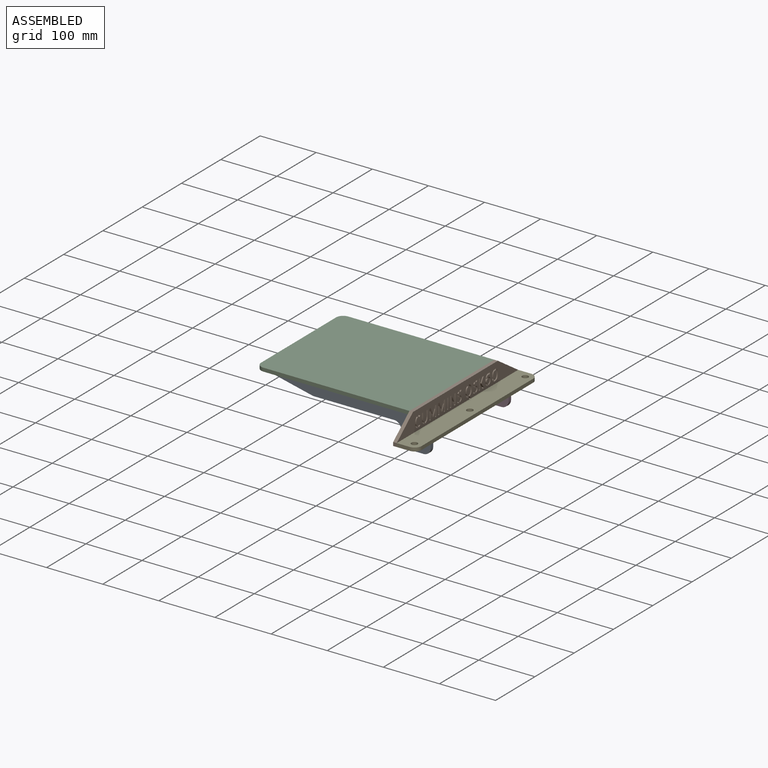
[diagram: assembled view]
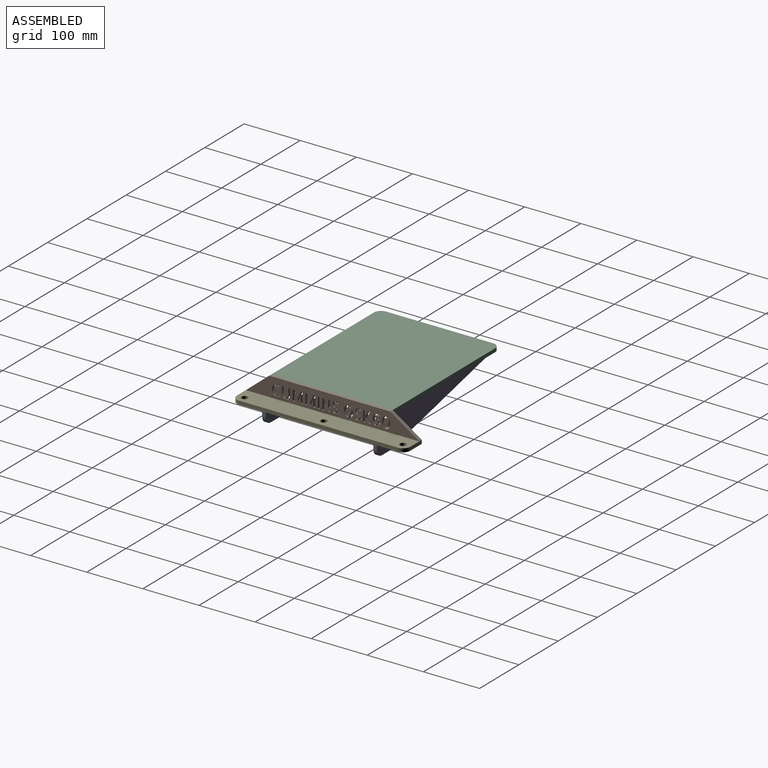
[diagram: assembled view, second angle]
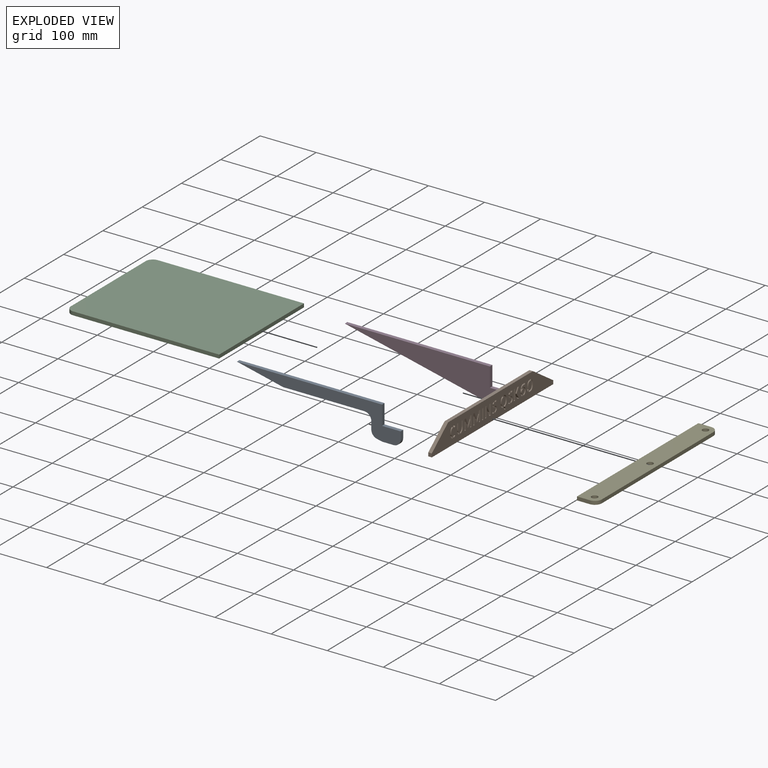
[diagram: exploded view]
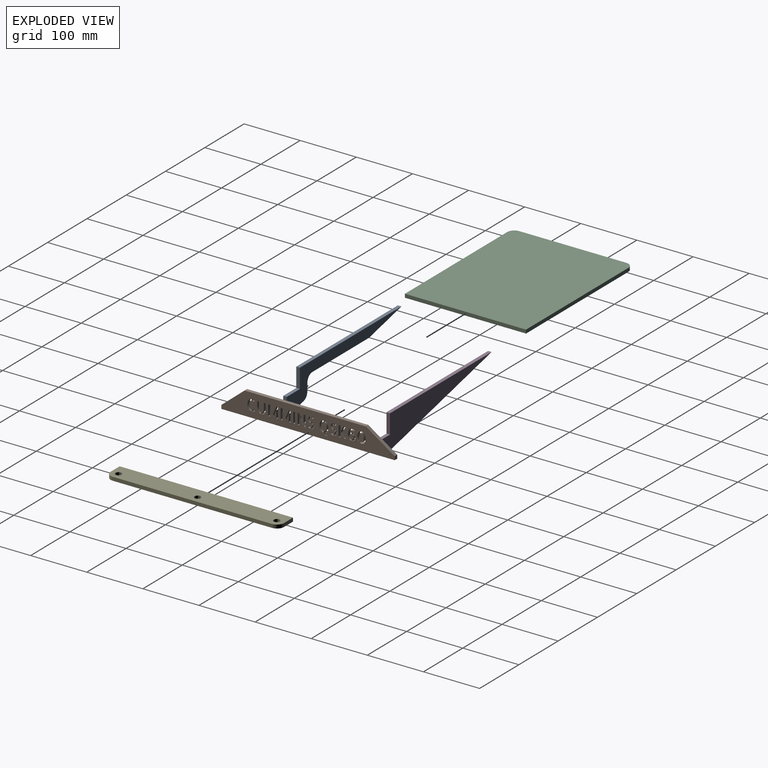
[diagram: exploded view, second angle]
ASSEMBLY  parts=5 mates=4
PART A: 16 faces, bbox 59.7x291.9x6.4 mm
  f0: plane 142.83x6.35mm, normal (1,0,0), area 907mm2, adj f1,f13,f14,f15
  f1: cylinder r=12.7mm len=12.7mm, axis (0,0,-1), area 126.7mm2, adj f0,f2,f14,f15
  f2: plane 13.44x6.35mm, normal (0,-1,0), area 85.3mm2, adj f1,f3,f14,f15
  f3: cylinder r=12.7mm len=12.37mm, axis (0,0,-1), area 108.4mm2, adj f2,f4,f14,f15
  f4: plane 7.8x6.35mm, normal (0.97,-0.22,0), area 50.8mm2, adj f3,f5,f14,f15
  f5: cylinder r=12.7mm len=6.35mm, axis (0,0,-1), area 18.3mm2, adj f4,f6,f14,f15
  f6: plane 19.2x6.35mm, normal (1,0,0), area 121.9mm2, adj f5,f7,f14,f15
  f7: cylinder r=12.7mm len=12.7mm, axis (0,0,-1), area 126.7mm2, adj f6,f8,f14,f15
  f8: plane 12.7x6.35mm, normal (0,1,0), area 80.6mm2, adj f7,f9,f14,f15
  f9: plane 33.35x6.35mm, normal (-1,0,0), area 211.8mm2, adj f8,f10,f14,f15
  f10: plane 34.29x6.35mm, normal (0,1,0), area 217.7mm2, adj f9,f11,f14,f15
  f11: plane 258.55x6.35mm, normal (-1,0,0), area 1641.8mm2, adj f10,f12,f14,f15
  f12: plane 81.1x18.72mm, normal (0.97,-0.22,0), area 528.6mm2, adj f11,f13,f14,f15
  f13: cylinder r=12.7mm len=6.35mm, axis (0,0,-1), area 18.3mm2, adj f0,f12,f14,f15
  f14: plane 291.9x59.69mm, normal (0,0,1), area 5698.7mm2, adj f0,f1,f2,f3,f4,f5,f6,f7
  f15: plane 291.9x59.69mm, normal (0,0,-1), area 5698.7mm2, adj f0,f1,f2,f3,f4,f5,f6,f7
PART B: 337 faces, bbox 40.6x309x6.4 mm
  f0: extruded ~6.35x0.05mm, area 0.4mm2, adj f1,f334,f335,f336
  f1: plane 6.35x3mm, normal (0.43,0.9,0), area 21.1mm2, adj f0,f2,f335,f336
  f2: extruded ~6.35x3.18mm, area 23.8mm2, adj f1,f3,f335,f336
  f3: extruded ~6.35x4.78mm, area 30.8mm2, adj f2,f4,f335,f336
  f4: extruded ~6.35x4.24mm, area 27.2mm2, adj f3,f5,f335,f336
  f5: extruded ~6.35x3.05mm, area 21.6mm2, adj f4,f6,f335,f336
  f6: extruded ~6.35x2.3mm, area 18.8mm2, adj f5,f7,f335,f336
  f7: extruded ~6.35x3.05mm, area 19.9mm2, adj f6,f8,f335,f336
  f8: extruded ~6.35x3.25mm, area 21.4mm2, adj f7,f9,f335,f336
  f9: plane 6.35x2.46mm, normal (0.43,0.9,0), area 17.3mm2, adj f8,f10,f335,f336
  f10: extruded ~6.35x2.01mm, area 13.7mm2, adj f9,f11,f335,f336
  f11: extruded ~6.35x1.75mm, area 11.4mm2, adj f10,f12,f335,f336
  f12: extruded ~6.35x1.33mm, area 11.6mm2, adj f11,f13,f335,f336
  f13: extruded ~6.35x2.23mm, area 15.2mm2, adj f12,f14,f335,f336
  f14: extruded ~6.35x3.37mm, area 21.5mm2, adj f13,f15,f335,f336
  f15: extruded ~6.35x2.84mm, area 18.1mm2, adj f14,f334,f335,f336
  f16: plane 6.35x2.43mm, normal (-0.42,-0.91,0), area 17mm2, adj f17,f306,f335,f336
  f17: extruded ~6.35x1.91mm, area 12.8mm2, adj f16,f18,f335,f336
  f18: extruded ~6.35x1.73mm, area 11.3mm2, adj f17,f19,f335,f336
  f19: extruded ~6.35x1.32mm, area 11.6mm2, adj f18,f20,f335,f336
  f20: extruded ~6.35x2.24mm, area 15.2mm2, adj f19,f21,f335,f336
  f21: extruded ~6.35x3.36mm, area 21.5mm2, adj f20,f22,f335,f336
  f22: extruded ~6.35x2.79mm, area 17.8mm2, adj f21,f23,f335,f336
  f23: extruded ~6.35x2.07mm, area 13.6mm2, adj f22,f24,f335,f336
  f24: plane 6.35x3.02mm, normal (-0.42,-0.91,0), area 21.2mm2, adj f23,f25,f335,f336
  f25: extruded ~6.35x3.16mm, area 23.4mm2, adj f24,f26,f335,f336
  f26: extruded ~6.35x4.72mm, area 30.3mm2, adj f25,f27,f335,f336
  f27: extruded ~6.35x4.23mm, area 27.1mm2, adj f26,f28,f335,f336
  f28: extruded ~6.35x3.04mm, area 21.5mm2, adj f27,f29,f335,f336
  f29: extruded ~6.35x2.3mm, area 18.9mm2, adj f28,f30,f335,f336
  f30: extruded ~6.35x3.03mm, area 19.8mm2, adj f29,f306,f335,f336
  f31: extruded ~6.35x2.15mm, area 16.4mm2, adj f32,f307,f335,f336
  f32: plane 6.35x2.35mm, normal (0,1,0), area 14.9mm2, adj f31,f33,f335,f336
  f33: extruded ~6.35x2.35mm, area 15.5mm2, adj f32,f34,f335,f336
  f34: extruded ~6.35x1.81mm, area 14.7mm2, adj f33,f35,f335,f336
  f35: extruded ~6.35x1.94mm, area 14.4mm2, adj f34,f36,f335,f336
  f36: extruded ~6.35x2.13mm, area 13.8mm2, adj f35,f37,f335,f336
  f37: extruded ~6.35x3.12mm, area 20.2mm2, adj f36,f38,f335,f336
  f38: extruded ~6.35x2.08mm, area 16mm2, adj f37,f39,f335,f336
  f39: extruded ~6.35x1.86mm, area 14.2mm2, adj f38,f40,f335,f336
  f40: extruded ~6.35x1.91mm, area 12.6mm2, adj f39,f41,f335,f336
  f41: plane 6.35x2.53mm, normal (0,1,0), area 16.1mm2, adj f40,f42,f335,f336
  f42: extruded ~6.35x2.13mm, area 16.5mm2, adj f41,f43,f335,f336
  f43: extruded ~6.35x2.75mm, area 18.6mm2, adj f42,f307,f335,f336
  f44: extruded ~6.35x1.6mm, area 10.9mm2, adj f45,f308,f335,f336
  f45: extruded ~6.35x2.04mm, area 13mm2, adj f44,f46,f335,f336
  f46: extruded ~6.35x1.83mm, area 12.2mm2, adj f45,f47,f335,f336
  f47: extruded ~6.35x1.28mm, area 11.4mm2, adj f46,f48,f335,f336
  f48: extruded ~6.35x1.78mm, area 12.4mm2, adj f47,f49,f335,f336
  f49: extruded ~6.35x2.09mm, area 13.4mm2, adj f48,f50,f335,f336
  f50: extruded ~6.35x0.1mm, area 0.7mm2, adj f49,f51,f335,f336
  f51: extruded ~6.35x0.1mm, area 0.7mm2, adj f50,f52,f335,f336
  f52: extruded ~6.35x1.09mm, area 9.6mm2, adj f51,f53,f335,f336
  f53: extruded ~6.35x1.89mm, area 12.6mm2, adj f52,f54,f335,f336
  f54: plane 6.35x2.27mm, normal (0,-1,0), area 14.4mm2, adj f53,f55,f335,f336
  f55: extruded ~6.35x1.32mm, area 8.8mm2, adj f54,f56,f335,f336
  f56: extruded ~6.35x1.03mm, area 8.6mm2, adj f55,f57,f335,f336
  f57: extruded ~6.35x1.24mm, area 9.1mm2, adj f56,f58,f335,f336
  f58: extruded ~6.35x1.54mm, area 10mm2, adj f57,f59,f335,f336
  f59: extruded ~6.35x1.58mm, area 10.2mm2, adj f58,f60,f335,f336
  f60: extruded ~6.35x1.27mm, area 9.2mm2, adj f59,f61,f335,f336
  f61: extruded ~6.35x1.05mm, area 8.8mm2, adj f60,f62,f335,f336
  f62: extruded ~6.35x1.31mm, area 8.8mm2, adj f61,f63,f335,f336
  f63: plane 6.35x2.53mm, normal (0,-1,0), area 16.1mm2, adj f62,f64,f335,f336
  f64: extruded ~6.35x2.75mm, area 18.1mm2, adj f63,f65,f335,f336
  f65: extruded ~6.35x1.96mm, area 16.3mm2, adj f64,f66,f335,f336
  f66: extruded ~6.35x2.39mm, area 17mm2, adj f65,f67,f335,f336
  f67: extruded ~6.35x3mm, area 19.2mm2, adj f66,f68,f335,f336
  f68: extruded ~6.35x5.67mm, area 36.3mm2, adj f67,f69,f335,f336
  f69: extruded ~6.35x3.58mm, area 25.1mm2, adj f68,f70,f335,f336
  f70: extruded ~6.35x2.22mm, area 18.6mm2, adj f69,f71,f335,f336
  f71: extruded ~6.35x2.44mm, area 16mm2, adj f70,f72,f335,f336
  f72: extruded ~6.35x2.73mm, area 17.4mm2, adj f71,f73,f335,f336
  f73: extruded ~6.35x2.19mm, area 14.8mm2, adj f72,f308,f335,f336
  f74: plane 6.35x3.54mm, normal (1,0,0), area 22.5mm2, adj f75,f309,f335,f336
  f75: plane 9.79x6.35mm, normal (-0.53,-0.85,0), area 73.2mm2, adj f74,f76,f335,f336
  f76: plane 9.25x6.61mm, normal (0.58,-0.81,0), area 72.2mm2, adj f75,f77,f335,f336
  f77: plane 6.35x3.59mm, normal (-1,0,0), area 22.8mm2, adj f76,f78,f335,f336
  f78: plane 7.5x6.35mm, normal (-0.56,0.83,0), area 57.5mm2, adj f77,f79,f335,f336
  f79: plane 6.35x3.77mm, normal (0,1,0), area 23.9mm2, adj f78,f309,f335,f336
  f80: plane 19.04x6.35mm, normal (0,-1,0), area 120.9mm2, adj f81,f310,f335,f336
  f81: plane 6.35x3.15mm, normal (-1,0,0), area 20mm2, adj f80,f82,f335,f336
  f82: plane 19.04x6.35mm, normal (0,1,0), area 120.9mm2, adj f81,f310,f335,f336
  f83: extruded ~6.35x1.52mm, area 12mm2, adj f84,f311,f335,f336
  f84: plane 6.35x3.03mm, normal (0,1,0), area 19.2mm2, adj f83,f85,f335,f336
  f85: extruded ~6.35x1.74mm, area 12.3mm2, adj f84,f86,f335,f336
  f86: extruded ~6.35x1.61mm, area 12.3mm2, adj f85,f87,f335,f336
  f87: extruded ~6.35x1.54mm, area 12.4mm2, adj f86,f88,f335,f336
  f88: extruded ~6.35x2.25mm, area 14.7mm2, adj f87,f89,f335,f336
  f89: extruded ~6.35x1.81mm, area 11.8mm2, adj f88,f90,f335,f336
  f90: extruded ~6.35x1.59mm, area 11.9mm2, adj f89,f91,f335,f336
  f91: extruded ~6.35x1.56mm, area 12.6mm2, adj f90,f92,f335,f336
  f92: extruded ~6.35x2.12mm, area 14.1mm2, adj f91,f93,f335,f336
  f93: plane 6.35x2.48mm, normal (0,1,0), area 15.8mm2, adj f92,f94,f335,f336
  f94: extruded ~6.35x2.82mm, area 24.5mm2, adj f93,f311,f335,f336
  f95: extruded ~6.35x1.05mm, area 7.9mm2, adj f96,f312,f335,f336
  f96: plane 6.35x2.22mm, normal (0.24,0.97,0), area 14.5mm2, adj f95,f97,f335,f336
  f97: extruded ~6.35x0.92mm, area 6.4mm2, adj f96,f98,f335,f336
  f98: extruded ~6.35x1.15mm, area 7.7mm2, adj f97,f99,f335,f336
  f99: extruded ~6.35x1.19mm, area 7.7mm2, adj f98,f100,f335,f336
  f100: extruded ~6.35x1.11mm, area 7.1mm2, adj f99,f101,f335,f336
  f101: plane 6.35x0.08mm, normal (1,0,0), area 0.5mm2, adj f100,f102,f335,f336
  f102: plane 6.35x2.46mm, normal (0,-1,0), area 15.6mm2, adj f101,f103,f335,f336
  f103: plane 6.35x0.05mm, normal (-1,0,0), area 0.3mm2, adj f102,f104,f335,f336
  f104: extruded ~6.35x1.28mm, area 8.1mm2, adj f103,f105,f335,f336
  f105: extruded ~6.35x1.33mm, area 8.6mm2, adj f104,f312,f335,f336
  f106: extruded ~6.35x1.5mm, area 12.1mm2, adj f107,f313,f335,f336
  f107: extruded ~6.35x2.04mm, area 13.4mm2, adj f106,f108,f335,f336
  f108: extruded ~6.35x2.04mm, area 13.3mm2, adj f107,f109,f335,f336
  f109: extruded ~6.35x1.59mm, area 12.1mm2, adj f108,f110,f335,f336
  f110: extruded ~6.35x1.55mm, area 12.1mm2, adj f109,f111,f335,f336
  f111: extruded ~6.35x1.88mm, area 12.4mm2, adj f110,f112,f335,f336
  f112: plane 6.35x2.72mm, normal (0,-1,0), area 17.2mm2, adj f111,f113,f335,f336
  f113: extruded ~6.35x1.37mm, area 10.9mm2, adj f112,f114,f335,f336
  f114: extruded ~6.35x1.43mm, area 9.9mm2, adj f113,f115,f335,f336
  f115: extruded ~6.35x1.63mm, area 11.2mm2, adj f114,f116,f335,f336
  f116: extruded ~6.35x1.37mm, area 11.1mm2, adj f115,f117,f335,f336
  f117: plane 6.35x2.95mm, normal (0,-1,0), area 18.7mm2, adj f116,f118,f335,f336
  f118: extruded ~6.35x1.71mm, area 12.2mm2, adj f117,f313,f335,f336
  f119: extruded ~6.35x0.58mm, area 4.2mm2, adj f120,f314,f335,f336
  f120: extruded ~6.35x0.26mm, area 1.9mm2, adj f119,f121,f335,f336
  f121: extruded ~6.35x0.31mm, area 2.3mm2, adj f120,f122,f335,f336
  f122: extruded ~6.35x0.52mm, area 3.6mm2, adj f121,f123,f335,f336
  f123: extruded ~6.35x0.85mm, area 5.6mm2, adj f122,f124,f335,f336
  f124: extruded ~6.35x1.32mm, area 8.4mm2, adj f123,f125,f335,f336
  f125: plane 6.35x2.61mm, normal (0,1,0), area 16.6mm2, adj f124,f126,f335,f336
  f126: extruded ~6.35x2.31mm, area 14.8mm2, adj f125,f127,f335,f336
  f127: extruded ~6.35x1.9mm, area 12.9mm2, adj f126,f128,f335,f336
  f128: extruded ~6.35x0.74mm, area 5.2mm2, adj f127,f314,f335,f336
  f129: extruded ~6.35x3mm, area 21.6mm2, adj f130,f315,f335,f336
  f130: extruded ~6.35x4.07mm, area 26.2mm2, adj f129,f131,f335,f336
  f131: extruded ~6.35x3.57mm, area 22.9mm2, adj f130,f132,f335,f336
  f132: extruded ~6.35x2.82mm, area 19.7mm2, adj f131,f133,f335,f336
  f133: extruded ~6.35x1.99mm, area 17.4mm2, adj f132,f134,f335,f336
  f134: extruded ~6.35x2.25mm, area 15.8mm2, adj f133,f135,f335,f336
  f135: plane 6.35x4.6mm, normal (0.61,-0.79,0), area 37mm2, adj f134,f136,f335,f336
  f136: plane 6.35x3.41mm, normal (-1,0,0), area 21.7mm2, adj f135,f137,f335,f336
  f137: plane 6.35x2.97mm, normal (-0.5,0.86,0), area 21.8mm2, adj f136,f138,f335,f336
  f138: plane 6.35x3.83mm, normal (0,1,0), area 24.3mm2, adj f137,f139,f335,f336
  f139: extruded ~6.35x1.64mm, area 11.1mm2, adj f138,f140,f335,f336
  f140: extruded ~6.35x1.33mm, area 12mm2, adj f139,f141,f335,f336
  f141: extruded ~6.35x2.17mm, area 15mm2, adj f140,f142,f335,f336
  f142: extruded ~6.35x3.14mm, area 20.1mm2, adj f141,f143,f335,f336
  f143: extruded ~6.35x3.14mm, area 20.1mm2, adj f142,f144,f335,f336
  f144: extruded ~6.35x2.17mm, area 15.1mm2, adj f143,f145,f335,f336
  f145: extruded ~6.35x1.34mm, area 12.1mm2, adj f144,f146,f335,f336
  f146: extruded ~6.35x1.61mm, area 10.9mm2, adj f145,f147,f335,f336
  f147: plane 6.35x2.56mm, normal (0,1,0), area 16.2mm2, adj f146,f148,f335,f336
  f148: extruded ~6.35x2.93mm, area 19.4mm2, adj f147,f315,f335,f336
  f149: extruded ~6.35x2.95mm, area 21mm2, adj f150,f316,f335,f336
  f150: extruded ~6.35x3.95mm, area 25.4mm2, adj f149,f151,f335,f336
  f151: extruded ~6.35x4.07mm, area 26.2mm2, adj f150,f152,f335,f336
  f152: extruded ~6.35x3mm, area 21.6mm2, adj f151,f153,f335,f336
  f153: extruded ~6.35x2.36mm, area 19.4mm2, adj f152,f154,f335,f336
  f154: extruded ~6.35x2.95mm, area 19.5mm2, adj f153,f155,f335,f336
  f155: plane 6.35x2.58mm, normal (0,-1,0), area 16.4mm2, adj f154,f156,f335,f336
  f156: extruded ~6.35x1.64mm, area 11.1mm2, adj f155,f157,f335,f336
  f157: extruded ~6.35x1.33mm, area 11.9mm2, adj f156,f158,f335,f336
  f158: extruded ~6.35x2.17mm, area 15mm2, adj f157,f159,f335,f336
  f159: extruded ~6.35x3.13mm, area 20.1mm2, adj f158,f160,f335,f336
  f160: extruded ~6.35x3.14mm, area 20.1mm2, adj f159,f161,f335,f336
  f161: extruded ~6.35x2.18mm, area 15.1mm2, adj f160,f162,f335,f336
  f162: extruded ~6.35x1.34mm, area 12.1mm2, adj f161,f163,f335,f336
  f163: extruded ~6.35x1.62mm, area 10.9mm2, adj f162,f164,f335,f336
  f164: plane 6.35x2.51mm, normal (0,-1,0), area 15.9mm2, adj f163,f165,f335,f336
  f165: plane 6.35x0.47mm, normal (-1,0,0), area 3mm2, adj f164,f166,f335,f336
  f166: extruded ~6.35x2.78mm, area 18.6mm2, adj f165,f316,f335,f336
  f167: extruded ~6.35x1.52mm, area 12mm2, adj f168,f317,f335,f336
  f168: plane 6.35x3.03mm, normal (0,1,0), area 19.2mm2, adj f167,f169,f335,f336
  f169: extruded ~6.35x1.74mm, area 12.3mm2, adj f168,f170,f335,f336
  f170: extruded ~6.35x1.61mm, area 12.3mm2, adj f169,f171,f335,f336
  f171: extruded ~6.35x1.54mm, area 12.4mm2, adj f170,f172,f335,f336
  f172: extruded ~6.35x2.25mm, area 14.7mm2, adj f171,f173,f335,f336
  f173: extruded ~6.35x1.81mm, area 11.8mm2, adj f172,f174,f335,f336
  f174: extruded ~6.35x1.59mm, area 11.9mm2, adj f173,f175,f335,f336
  f175: extruded ~6.35x1.56mm, area 12.6mm2, adj f174,f176,f335,f336
  f176: extruded ~6.35x2.12mm, area 14.1mm2, adj f175,f177,f335,f336
  f177: plane 6.35x2.48mm, normal (0,1,0), area 15.8mm2, adj f176,f178,f335,f336
  f178: extruded ~6.35x2.82mm, area 24.5mm2, adj f177,f317,f335,f336
  f179: extruded ~6.35x1.05mm, area 7.9mm2, adj f180,f318,f335,f336
  f180: plane 6.35x2.22mm, normal (0.24,0.97,0), area 14.5mm2, adj f179,f181,f335,f336
  f181: extruded ~6.35x0.92mm, area 6.4mm2, adj f180,f182,f335,f336
  f182: extruded ~6.35x1.15mm, area 7.7mm2, adj f181,f183,f335,f336
  f183: extruded ~6.35x1.19mm, area 7.7mm2, adj f182,f184,f335,f336
  f184: extruded ~6.35x1.11mm, area 7.1mm2, adj f183,f185,f335,f336
  f185: plane 6.35x0.08mm, normal (1,0,0), area 0.5mm2, adj f184,f186,f335,f336
  f186: plane 6.35x2.46mm, normal (0,-1,0), area 15.6mm2, adj f185,f187,f335,f336
  f187: plane 6.35x0.05mm, normal (-1,0,0), area 0.3mm2, adj f186,f188,f335,f336
  f188: extruded ~6.35x1.28mm, area 8.1mm2, adj f187,f189,f335,f336
  f189: extruded ~6.35x1.33mm, area 8.6mm2, adj f188,f318,f335,f336
  f190: extruded ~6.35x1.5mm, area 12.1mm2, adj f191,f319,f335,f336
  f191: extruded ~6.35x2.04mm, area 13.4mm2, adj f190,f192,f335,f336
  f192: extruded ~6.35x2.04mm, area 13.3mm2, adj f191,f193,f335,f336
  f193: extruded ~6.35x1.59mm, area 12.1mm2, adj f192,f194,f335,f336
  f194: extruded ~6.35x1.55mm, area 12.1mm2, adj f193,f195,f335,f336
  f195: extruded ~6.35x1.88mm, area 12.4mm2, adj f194,f196,f335,f336
  f196: plane 6.35x2.72mm, normal (0,-1,0), area 17.2mm2, adj f195,f197,f335,f336
  f197: extruded ~6.35x1.37mm, area 10.9mm2, adj f196,f198,f335,f336
  f198: extruded ~6.35x1.43mm, area 9.9mm2, adj f197,f199,f335,f336
  f199: extruded ~6.35x1.63mm, area 11.2mm2, adj f198,f200,f335,f336
  f200: extruded ~6.35x1.37mm, area 11.1mm2, adj f199,f201,f335,f336
  f201: plane 6.35x2.95mm, normal (0,-1,0), area 18.7mm2, adj f200,f202,f335,f336
  f202: extruded ~6.35x1.71mm, area 12.2mm2, adj f201,f319,f335,f336
  f203: extruded ~6.35x0.58mm, area 4.2mm2, adj f204,f320,f335,f336
  f204: extruded ~6.35x0.26mm, area 1.9mm2, adj f203,f205,f335,f336
  f205: extruded ~6.35x0.31mm, area 2.3mm2, adj f204,f206,f335,f336
  f206: extruded ~6.35x0.52mm, area 3.6mm2, adj f205,f207,f335,f336
  f207: extruded ~6.35x0.85mm, area 5.6mm2, adj f206,f208,f335,f336
  f208: extruded ~6.35x1.32mm, area 8.4mm2, adj f207,f209,f335,f336
  f209: plane 6.35x2.61mm, normal (0,1,0), area 16.6mm2, adj f208,f210,f335,f336
  f210: extruded ~6.35x2.31mm, area 14.8mm2, adj f209,f211,f335,f336
  f211: extruded ~6.35x1.9mm, area 12.9mm2, adj f210,f212,f335,f336
  f212: extruded ~6.35x0.74mm, area 5.2mm2, adj f211,f320,f335,f336
  f213: plane 19.04x6.35mm, normal (0,-1,0), area 120.9mm2, adj f214,f321,f335,f336
  f214: plane 6.35x3.15mm, normal (-1,0,0), area 20mm2, adj f213,f215,f335,f336
  f215: plane 19.04x6.35mm, normal (0,1,0), area 120.9mm2, adj f214,f321,f335,f336
  f216: plane 11.29x6.41mm, normal (0.49,-0.87,0), area 82.5mm2, adj f217,f322,f335,f336
  f217: plane 13.13x6.35mm, normal (0,1,0), area 83.3mm2, adj f216,f218,f335,f336
  f218: plane 6.35x3.15mm, normal (1,0,0), area 20mm2, adj f217,f219,f335,f336
  f219: plane 19.04x6.35mm, normal (0,-1,0), area 120.9mm2, adj f218,f220,f335,f336
  f220: plane 6.35x3.15mm, normal (-1,0,0), area 20mm2, adj f219,f221,f335,f336
  f221: plane 11.27x6.41mm, normal (-0.49,0.87,0), area 82.3mm2, adj f220,f322,f335,f336
  f222: plane 6.35x3.15mm, normal (1,0,0), area 20mm2, adj f223,f323,f335,f336
  f223: plane 19.04x6.35mm, normal (0,-1,0), area 120.9mm2, adj f222,f224,f335,f336
  f224: plane 6.35x3.15mm, normal (-1,0,0), area 20mm2, adj f223,f323,f335,f336
  f225: plane 6.35x4.73mm, normal (0,1,0), area 30mm2, adj f226,f324,f335,f336
  f226: plane 11.81x6.35mm, normal (0.4,0.92,0), area 81.7mm2, adj f225,f227,f335,f336
  f227: plane 6.35x3.15mm, normal (1,0,0), area 20mm2, adj f226,f228,f335,f336
  f228: plane 19.04x6.35mm, normal (0,-1,0), area 120.9mm2, adj f227,f229,f335,f336
  f229: plane 6.35x3.15mm, normal (-1,0,0), area 20mm2, adj f228,f230,f335,f336
  f230: plane 13.1x6.35mm, normal (0,1,0), area 83.2mm2, adj f229,f231,f335,f336
  f231: plane 10.6x6.35mm, normal (-0.37,-0.93,0), area 72.5mm2, adj f230,f324,f335,f336
  f232: plane 6.35x3.15mm, normal (-1,0,0), area 20mm2, adj f233,f325,f335,f336
  f233: plane 19.04x6.35mm, normal (0,1,0), area 120.9mm2, adj f232,f234,f335,f336
  f234: plane 6.35x3.15mm, normal (1,0,0), area 20mm2, adj f233,f235,f335,f336
  f235: plane 11.75x6.35mm, normal (0.4,-0.92,0), area 81.4mm2, adj f234,f236,f335,f336
  f236: plane 6.35x4.78mm, normal (0,-1,0), area 30.4mm2, adj f235,f237,f335,f336
  f237: plane 6.35x0.83mm, normal (-1,0,0), area 5.3mm2, adj f236,f238,f335,f336
  f238: plane 10.6x6.35mm, normal (-0.38,0.93,0), area 72.6mm2, adj f237,f325,f335,f336
  f239: plane 6.35x4.73mm, normal (0,1,0), area 30mm2, adj f240,f326,f335,f336
  f240: plane 11.81x6.35mm, normal (0.4,0.92,0), area 81.7mm2, adj f239,f241,f335,f336
  f241: plane 6.35x3.15mm, normal (1,0,0), area 20mm2, adj f240,f242,f335,f336
  f242: plane 19.04x6.35mm, normal (0,-1,0), area 120.9mm2, adj f241,f243,f335,f336
  f243: plane 6.35x3.15mm, normal (-1,0,0), area 20mm2, adj f242,f244,f335,f336
  f244: plane 13.1x6.35mm, normal (0,1,0), area 83.2mm2, adj f243,f245,f335,f336
  f245: plane 10.6x6.35mm, normal (-0.37,-0.93,0), area 72.5mm2, adj f244,f326,f335,f336
  f246: plane 6.35x3.15mm, normal (-1,0,0), area 20mm2, adj f247,f327,f335,f336
  f247: plane 19.04x6.35mm, normal (0,1,0), area 120.9mm2, adj f246,f248,f335,f336
  f248: plane 6.35x3.15mm, normal (1,0,0), area 20mm2, adj f247,f249,f335,f336
  f249: plane 11.75x6.35mm, normal (0.4,-0.92,0), area 81.4mm2, adj f248,f250,f335,f336
  f250: plane 6.35x4.78mm, normal (0,-1,0), area 30.4mm2, adj f249,f251,f335,f336
  f251: plane 6.35x0.83mm, normal (-1,0,0), area 5.3mm2, adj f250,f252,f335,f336
  f252: plane 10.6x6.35mm, normal (-0.38,0.93,0), area 72.6mm2, adj f251,f327,f335,f336
  f253: plane 9.12x6.35mm, normal (0,1,0), area 57.9mm2, adj f254,f328,f335,f336
  f254: plane 6.35x3.13mm, normal (1,0,0), area 19.8mm2, adj f253,f255,f335,f336
  f255: plane 9.43x6.35mm, normal (0,-1,0), area 59.9mm2, adj f254,f256,f335,f336
  f256: extruded ~6.35x4.08mm, area 26.2mm2, adj f255,f257,f335,f336
  f257: extruded ~6.35x3.01mm, area 21.1mm2, adj f256,f258,f335,f336
  f258: extruded ~6.35x2.16mm, area 18.4mm2, adj f257,f259,f335,f336
  f259: extruded ~6.35x2.84mm, area 18.8mm2, adj f258,f260,f335,f336
  f260: plane 6.35x2.56mm, normal (0,1,0), area 16.2mm2, adj f259,f261,f335,f336
  f261: extruded ~6.35x1.54mm, area 10.4mm2, adj f260,f262,f335,f336
  f262: extruded ~6.35x1.3mm, area 11.3mm2, adj f261,f263,f335,f336
  f263: extruded ~6.35x2.26mm, area 15.2mm2, adj f262,f328,f335,f336
  f264: plane 6.35x3.15mm, normal (1,0,0), area 20mm2, adj f265,f329,f335,f336
  f265: plane 9.12x6.35mm, normal (0,-1,0), area 57.9mm2, adj f264,f266,f335,f336
  f266: extruded ~6.35x3.37mm, area 21.5mm2, adj f265,f267,f335,f336
  f267: extruded ~6.35x2.27mm, area 15.3mm2, adj f266,f268,f335,f336
  f268: extruded ~6.35x1.33mm, area 11.4mm2, adj f267,f269,f335,f336
  f269: extruded ~6.35x1.54mm, area 10.4mm2, adj f268,f270,f335,f336
  f270: plane 6.35x2.56mm, normal (0,-1,0), area 16.2mm2, adj f269,f271,f335,f336
  f271: extruded ~6.35x2.85mm, area 18.9mm2, adj f270,f272,f335,f336
  f272: extruded ~6.35x2.16mm, area 18.4mm2, adj f271,f273,f335,f336
  f273: extruded ~6.35x3.01mm, area 21.1mm2, adj f272,f274,f335,f336
  f274: extruded ~6.35x4.08mm, area 26.2mm2, adj f273,f329,f335,f336
  f275: extruded ~6.35x2.99mm, area 21.4mm2, adj f276,f330,f335,f336
  f276: extruded ~6.35x4.07mm, area 26.2mm2, adj f275,f277,f335,f336
  f277: extruded ~6.35x4.06mm, area 26.1mm2, adj f276,f278,f335,f336
  f278: extruded ~6.35x2.97mm, area 21.4mm2, adj f277,f279,f335,f336
  f279: extruded ~6.35x2.31mm, area 19.1mm2, adj f278,f280,f335,f336
  f280: extruded ~6.35x2.91mm, area 19.3mm2, adj f279,f281,f335,f336
  f281: plane 6.35x2.58mm, normal (0,-1,0), area 16.4mm2, adj f280,f282,f335,f336
  f282: extruded ~6.35x1.6mm, area 10.9mm2, adj f281,f283,f335,f336
  f283: extruded ~6.35x1.32mm, area 11.9mm2, adj f282,f284,f335,f336
  f284: extruded ~6.35x2.16mm, area 14.9mm2, adj f283,f285,f335,f336
  f285: extruded ~6.35x3.09mm, area 19.8mm2, adj f284,f286,f335,f336
  f286: extruded ~6.35x3.1mm, area 19.8mm2, adj f285,f287,f335,f336
  f287: extruded ~6.35x2.17mm, area 15mm2, adj f286,f288,f335,f336
  f288: extruded ~6.35x1.34mm, area 12.1mm2, adj f287,f289,f335,f336
  f289: extruded ~6.35x1.59mm, area 10.8mm2, adj f288,f290,f335,f336
  f290: plane 6.35x2.53mm, normal (0,-1,0), area 16.1mm2, adj f289,f291,f335,f336
  f291: extruded ~6.35x2.91mm, area 19.2mm2, adj f290,f330,f335,f336
  f292: extruded ~6.35x2.66mm, area 17.4mm2, adj f293,f331,f335,f336
  f293: plane 6.35x2.56mm, normal (0,1,0), area 16.2mm2, adj f292,f294,f335,f336
  f294: extruded ~6.35x1.46mm, area 9.7mm2, adj f293,f295,f335,f336
  f295: extruded ~6.35x1.25mm, area 10.2mm2, adj f294,f296,f335,f336
  f296: plane 6.35x2.15mm, normal (0.75,-0.66,0), area 18.1mm2, adj f295,f331,f335,f336
  f297: extruded ~6.35x4.86mm, area 34.3mm2, adj f298,f332,f335,f336
  f298: plane 6.35x2.15mm, normal (-0.75,-0.66,0), area 18.2mm2, adj f297,f299,f335,f336
  f299: extruded ~6.35x1.27mm, area 10.3mm2, adj f298,f300,f335,f336
  f300: extruded ~6.35x1.45mm, area 9.6mm2, adj f299,f332,f335,f336
  f301: plane 41.43x34.29mm, normal (-0.77,-0.64,0), area 341.5mm2, adj f302,f333,f335,f336
  f302: plane 6.35x6.35mm, normal (0,-1,0), area 40.3mm2, adj f301,f303,f335,f336
  f303: plane 308.97x6.35mm, normal (1,0,0), area 1961.9mm2, adj f302,f304,f335,f336
  f304: plane 6.35x6.35mm, normal (0,1,0), area 40.3mm2, adj f303,f305,f335,f336
  f305: plane 51.59x34.29mm, normal (-0.83,0.55,0), area 393.3mm2, adj f304,f333,f335,f336
  f306: extruded ~6.35x3.13mm, area 20.5mm2, adj f16,f30,f335,f336
  f307: extruded ~6.35x2.66mm, area 18mm2, adj f31,f43,f335,f336
  f308: plane 6.35x2.14mm, normal (-0.42,-0.91,0), area 15mm2, adj f44,f73,f335,f336
  f309: plane 7.78x6.35mm, normal (0.51,0.86,0), area 57.5mm2, adj f74,f79,f335,f336
  f310: plane 6.35x3.15mm, normal (1,0,0), area 20mm2, adj f80,f82,f335,f336
  f311: extruded ~6.35x1.5mm, area 10.5mm2, adj f83,f94,f335,f336
  f312: extruded ~6.35x1.28mm, area 8.6mm2, adj f95,f105,f335,f336
  f313: extruded ~6.35x1.55mm, area 12.2mm2, adj f106,f118,f335,f336
  f314: extruded ~6.35x0.75mm, area 5.3mm2, adj f119,f128,f335,f336
  f315: extruded ~6.35x2.35mm, area 19.3mm2, adj f129,f148,f335,f336
  f316: extruded ~6.35x2.21mm, area 18.7mm2, adj f149,f166,f335,f336
  f317: extruded ~6.35x1.5mm, area 10.5mm2, adj f167,f178,f335,f336
  f318: extruded ~6.35x1.28mm, area 8.6mm2, adj f179,f189,f335,f336
  f319: extruded ~6.35x1.55mm, area 12.2mm2, adj f190,f202,f335,f336
  f320: extruded ~6.35x0.75mm, area 5.3mm2, adj f203,f212,f335,f336
  f321: plane 6.35x3.15mm, normal (1,0,0), area 20mm2, adj f213,f215,f335,f336
  f322: plane 6.35x5.95mm, normal (0,1,0), area 37.7mm2, adj f216,f221,f335,f336
  f323: plane 19.04x6.35mm, normal (0,1,0), area 120.9mm2, adj f222,f224,f335,f336
  f324: plane 6.35x0.86mm, normal (-1,0,0), area 5.4mm2, adj f225,f231,f335,f336
  f325: plane 13.1x6.35mm, normal (0,-1,0), area 83.2mm2, adj f232,f238,f335,f336
  f326: plane 6.35x0.86mm, normal (-1,0,0), area 5.4mm2, adj f239,f245,f335,f336
  f327: plane 13.1x6.35mm, normal (0,-1,0), area 83.2mm2, adj f246,f252,f335,f336
  f328: extruded ~6.35x3.4mm, area 21.7mm2, adj f253,f263,f335,f336
  f329: plane 9.43x6.35mm, normal (0,1,0), area 59.9mm2, adj f264,f274,f335,f336
  f330: extruded ~6.35x2.31mm, area 19.1mm2, adj f275,f291,f335,f336
  f331: extruded ~6.35x2.2mm, area 16.9mm2, adj f292,f296,f335,f336
  f332: plane 6.35x2.56mm, normal (0,1,0), area 16.2mm2, adj f297,f300,f335,f336
  f333: plane 215.95x6.35mm, normal (-1,0,0), area 1371.3mm2, adj f301,f305,f335,f336
  f334: extruded ~6.35x2.07mm, area 13.7mm2, adj f0,f15,f335,f336
  f335: plane 308.97x40.64mm, normal (0,0,1), area 9482.9mm2, adj f0,f1,f2,f3,f4,f5,f6,f7
  f336: plane 308.97x40.64mm, normal (0,0,-1), area 9482.9mm2, adj f0,f1,f2,f3,f4,f5,f6,f7
PART C: 8 faces, bbox 215.9x273.1x6.4 mm
  f0: plane 190.5x6.35mm, normal (0,1,0), area 1209.7mm2, adj f1,f5,f6,f7
  f1: cylinder r=12.7mm len=12.7mm, axis (0,0,-1), area 126.7mm2, adj f0,f2,f6,f7
  f2: plane 260.35x6.35mm, normal (-1,0,0), area 1653.2mm2, adj f1,f3,f6,f7
  f3: plane 215.9x6.35mm, normal (0,-1,0), area 1371mm2, adj f2,f4,f6,f7
  f4: plane 260.35x6.35mm, normal (1,0,0), area 1653.2mm2, adj f3,f5,f6,f7
  f5: cylinder r=12.7mm len=12.7mm, axis (0,0,-1), area 126.7mm2, adj f0,f4,f6,f7
  f6: plane 273.05x215.9mm, normal (0,0,1), area 58882.3mm2, adj f0,f1,f2,f3,f4,f5
  f7: plane 273.05x215.9mm, normal (0,0,-1), area 58882.3mm2, adj f0,f1,f2,f3,f4,f5
PART D: 10 faces, bbox 59.7x291.9x6.4 mm
  f0: plane 12.7x6.35mm, normal (0,1,0), area 80.6mm2, adj f1,f7,f8,f9
  f1: plane 33.35x6.35mm, normal (-1,0,0), area 211.8mm2, adj f0,f2,f8,f9
  f2: plane 34.29x6.35mm, normal (0,1,0), area 217.7mm2, adj f1,f3,f8,f9
  f3: plane 258.55x6.35mm, normal (-1,0,0), area 1641.8mm2, adj f2,f4,f8,f9
  f4: plane 257.14x59.36mm, normal (0.97,-0.22,0), area 1675.8mm2, adj f3,f5,f8,f9
  f5: cylinder r=12.7mm len=6.35mm, axis (0,0,-1), area 18.3mm2, adj f4,f6,f8,f9
  f6: plane 19.2x6.35mm, normal (1,0,0), area 121.9mm2, adj f5,f7,f8,f9
  f7: cylinder r=12.7mm len=12.7mm, axis (0,0,-1), area 126.7mm2, adj f0,f6,f8,f9
  f8: plane 291.9x59.69mm, normal (0,0,1), area 8528.7mm2, adj f0,f1,f2,f3,f4,f5,f6,f7
  f9: plane 291.9x59.69mm, normal (0,0,-1), area 8528.7mm2, adj f0,f1,f2,f3,f4,f5,f6,f7
PART E: 11 faces, bbox 35.6x309x6.4 mm
  f0: plane 308.97x6.35mm, normal (-1,0,0), area 1961.9mm2, adj f1,f8,f9,f10
  f1: plane 22.86x6.35mm, normal (0,-1,0), area 145.2mm2, adj f0,f2,f9,f10
  f2: cylinder r=12.7mm len=12.7mm, axis (0,0,-1), area 126.7mm2, adj f1,f3,f9,f10
  f3: plane 283.57x6.35mm, normal (1,0,0), area 1800.6mm2, adj f2,f4,f9,f10
  f4: cylinder r=12.7mm len=12.7mm, axis (0,0,-1), area 126.7mm2, adj f3,f8,f9,f10
  f5: cylinder r=5.5mm len=11mm, axis (0,0,-1), area 219.5mm2, adj f9,f10
  f6: cylinder r=5.5mm len=11mm, axis (0,0,-1), area 219.5mm2, adj f9,f10
  f7: cylinder r=5.5mm len=11mm, axis (0,0,-1), area 219.5mm2, adj f9,f10
  f8: plane 22.86x6.35mm, normal (0,1,0), area 145.2mm2, adj f0,f4,f9,f10
  f9: plane 308.97x35.56mm, normal (0,0,1), area 10632.5mm2, adj f0,f1,f2,f3,f4,f5,f6,f7
  f10: plane 308.97x35.56mm, normal (0,0,-1), area 10632.5mm2, adj f0,f1,f2,f3,f4,f5,f6,f7
PLACE A rot(axis=(0.58,0.58,-0.58),120deg) t=(-98.78,-168.43,-326.16)mm
PLACE B rot(axis=(0,1,0),90deg) t=(-86.66,-339.32,-349.55)mm
PLACE C rot(axis=(0,0,1),90deg) t=(17.86,-203.39,-85.78)mm
PLACE D rot(axis=(0.58,0.58,-0.58),120deg) t=(-97.48,29.69,-255.37)mm
PLACE E t=(136.56,-339.32,-120.07)mm
MATE fastened D.f2 <-> B.f336  axis (-1,0,0) through (-86.66,26.51,-103.14)mm
MATE fastened B.f336 <-> C.f3  axis (-1,0,0) through (-86.66,-73.33,-79.43)mm
MATE fastened B.f335 <-> E.f0  axis (-1,0,0) through (-80.31,-68.25,-120.07)mm
MATE fastened A.f10 <-> B.f336  axis (-1,0,0) through (-86.66,-171.61,-103.14)mm
